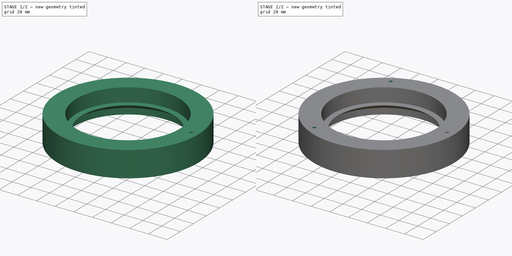
[diagram: build sequence overview — one tinted view per stage of 2, left to right]
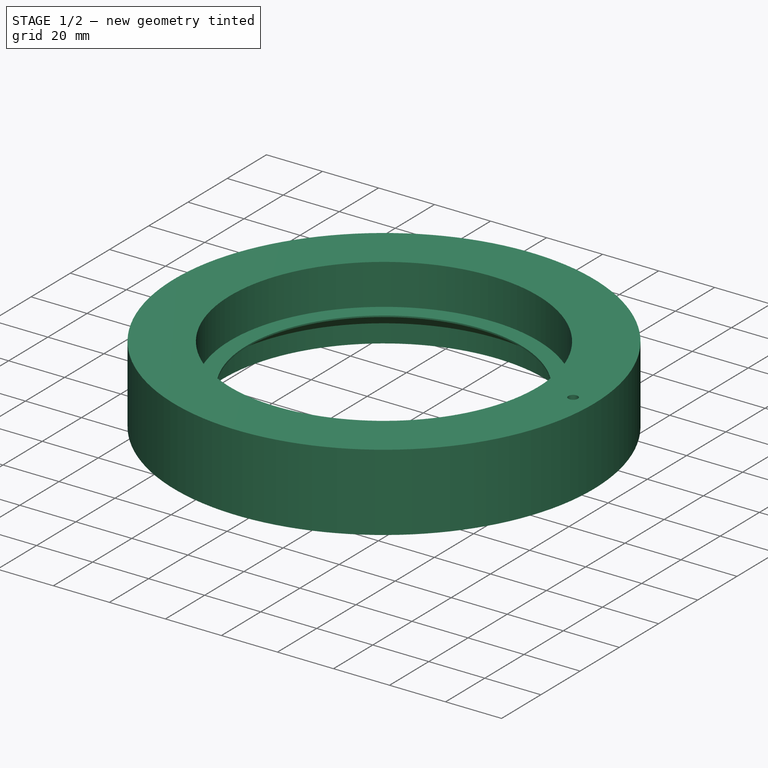
[diagram: stage 1 of 2 — iso view after this stage's code; geometry added in this stage tinted green]
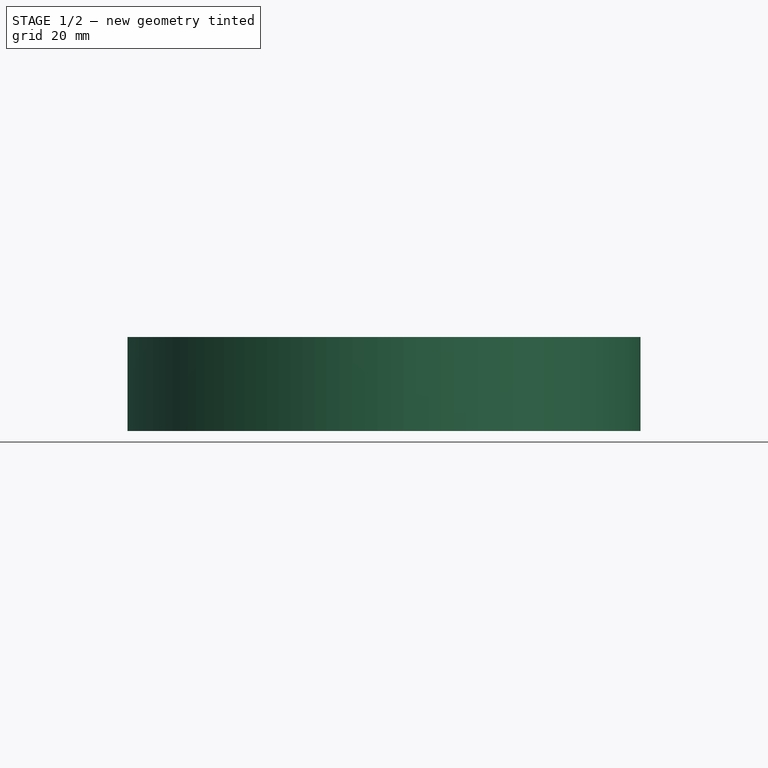
[diagram: stage 1 of 2 — front view after this stage's code; geometry added in this stage tinted green]
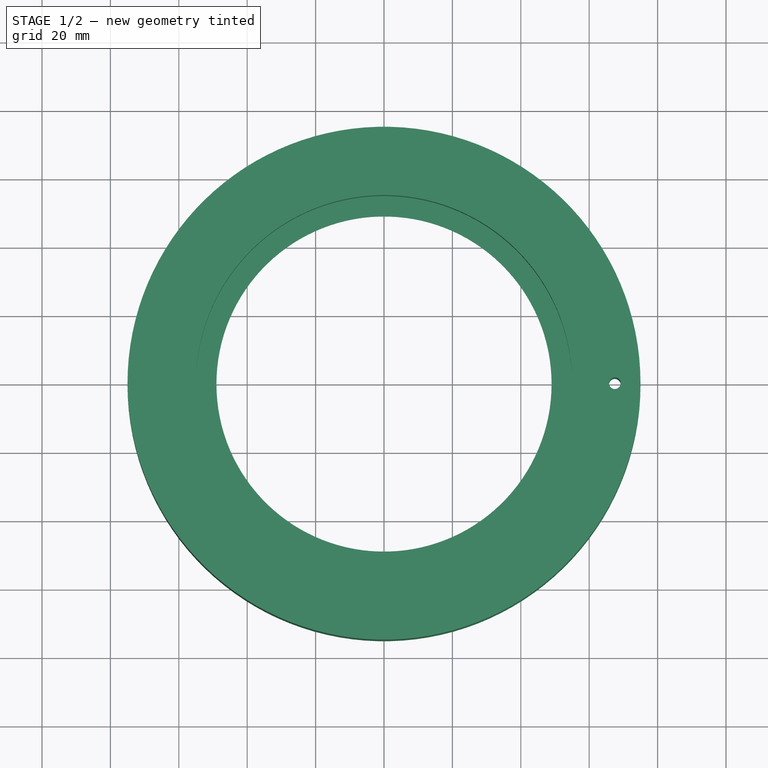
[diagram: stage 1 of 2 — top view after this stage's code; geometry added in this stage tinted green]
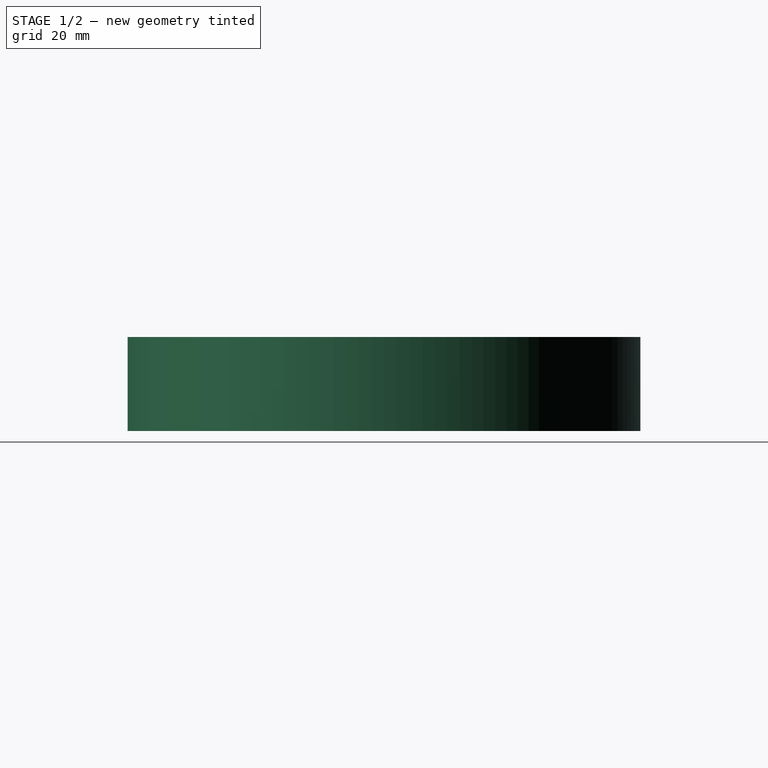
[diagram: stage 1 of 2 — right view after this stage's code; geometry added in this stage tinted green]
FCSTD DOCUMENT  (FreeCAD 0.19R24276 (Git))
Label: BaseTop
License: All rights reserved
LicenseURL: http://en.wikipedia.org/wiki/All_rights_reserved
objects: Sketcher::SketchObject×2, PartDesign::CoordinateSystem×2, PartDesign::Revolution×1, Spreadsheet::Sheet×1, PartDesign::Pocket×1, PartDesign::PolarPattern×1, PartDesign::Body×1
note: 10 computed .brp shape members not serialized (recipe doc carries the construction recipe); baked Part::Feature solids carry a one-line shape summary decoded from their .brp

FEATURE [Sketcher::SketchObject] Sketch
  FullyConstrained = true
  MapMode = 5
  Placement = pos=(0,0,0) rot=(1,0,0;1.5708rad)
  Support = -> [XZ_Plane]
  sketch-geometry (8):
    g0: LineSegment StartX=55 StartY=13 StartZ=0 EndX=55 EndY=27.5 EndZ=0
    g1: LineSegment StartX=55 StartY=27.5 StartZ=0 EndX=75 EndY=27.5 EndZ=0
    g2: LineSegment StartX=75 StartY=27.5 StartZ=0 EndX=75 EndY=0 EndZ=0
    g3: LineSegment StartX=75 StartY=0 StartZ=0 EndX=57.5689 EndY=0 EndZ=0
    g4: LineSegment StartX=57.5689 StartY=0 StartZ=0 EndX=57.5689 EndY=6.5 EndZ=0
    g5: LineSegment StartX=57.5689 StartY=6.5 StartZ=0 EndX=49 EndY=12.5 EndZ=0
    g6: LineSegment StartX=49 StartY=13 StartZ=0 EndX=55 EndY=13 EndZ=0
    g7: LineSegment StartX=49 StartY=13 StartZ=0 EndX=49 EndY=12.5 EndZ=0
  constraints (24):
    c: Vertical(g0)
    c: Coincident(g0,g1)
    c: Horizontal(g1)
    c: Coincident(g1,g2)
    c: PointOnObject(g2,g-1)
    c: Vertical(g2)
    c: Coincident(g2,g3)
    c: Horizontal(g3)
    c: Coincident(g3,g4)
    c: Vertical(g4)
    c: Coincident(g4,g5)
    c: Coincident(g6,g0)
    c: Horizontal(g6)
    c: DistanceX(g-1,g2) = 75
    c: DistanceX(g-1,g0) = 55
    c: DistanceX(g6,g6) = 6
    c: DistanceY(g2,g2) = 27.5
    c: Coincident(g7,g6)
    c: Coincident(g7,g5)
    c: Vertical(g7)
    c: DistanceY(g7,g7) = 0.5
    c: DistanceY(g5,g5) = 6
    c: DistanceY(g3,g6) = 13
    c: Angle(g3,g5) = 2.53073
FEATURE [PartDesign::Revolution] Revolution
  Angle = 360
  Axis = (0,2e-16,1)
  Base = (0,0,0)
  Placement = pos=(0,0,0) rot=(1,0,0;1.5708rad)
  Profile = -> Sketch
  ReferenceAxis = -> Sketch [V_Axis]
  Refine = true
  Reversed = true
FEATURE [Spreadsheet::Sheet] Spreadsheet
  cells = A2=M3BoltBodyRadius; B2(M3BoltBodyRadius)=1.7; A3=M3BoltHeadRadius; B3(M3BoltHeadRadius)=2.95; A4=M3NutCircumradius; B4(M3NutCircumradius)=3.35; A5=M3NutThickness; B5(M3NutThickness)=2.7; A6=M4BoltBodyRadius; B6(M4BoltBodyRadius)=2.2; A7=M6BoltBodyRadius; B7(M6BoltBodyRadius)=3; A8=M6WasherOuterRadius; B8(M6WasherOuterRadius)=7
FEATURE [Sketcher::SketchObject] Sketch001
  FullyConstrained = true
  MapMode = 5
  Placement = pos=(0,1.82e-14,27.5) rot=(0,0,1;3.14159rad)
  Support = -> [Revolution]
  expr: Constraints[1] = Spreadsheet.M3BoltBodyRadius
  sketch-geometry (1):
    g0: Circle CenterX=-67.5 CenterY=0 CenterZ=0 NormalX=0 NormalY=0 NormalZ=1 AngleXU=0 Radius=1.7
  constraints (3):
    c: PointOnObject(g0,g-1)
    c: Radius(g0) = 1.7
    c: DistanceX(g0,g-1) = 67.5
FEATURE [PartDesign::Pocket] Pocket
  BaseFeature = -> Revolution
  Length = 5
  Length2 = 100
  Placement = pos=(0,0,0) rot=(1,0,0;1.5708rad)
  Profile = -> Sketch001
  Refine = true
  Type = 1
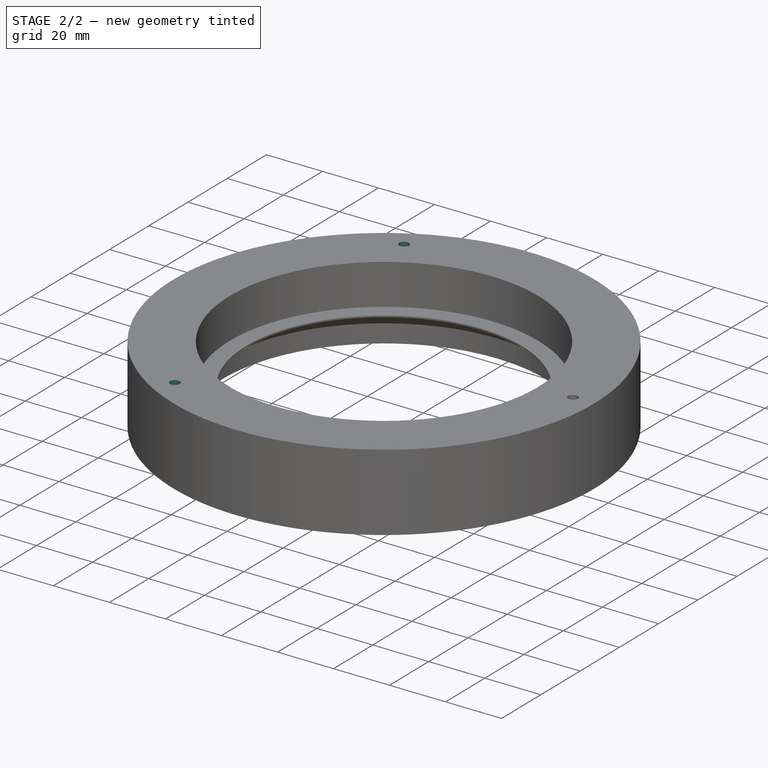
[diagram: stage 2 of 2 — iso view after this stage's code; geometry added in this stage tinted green]
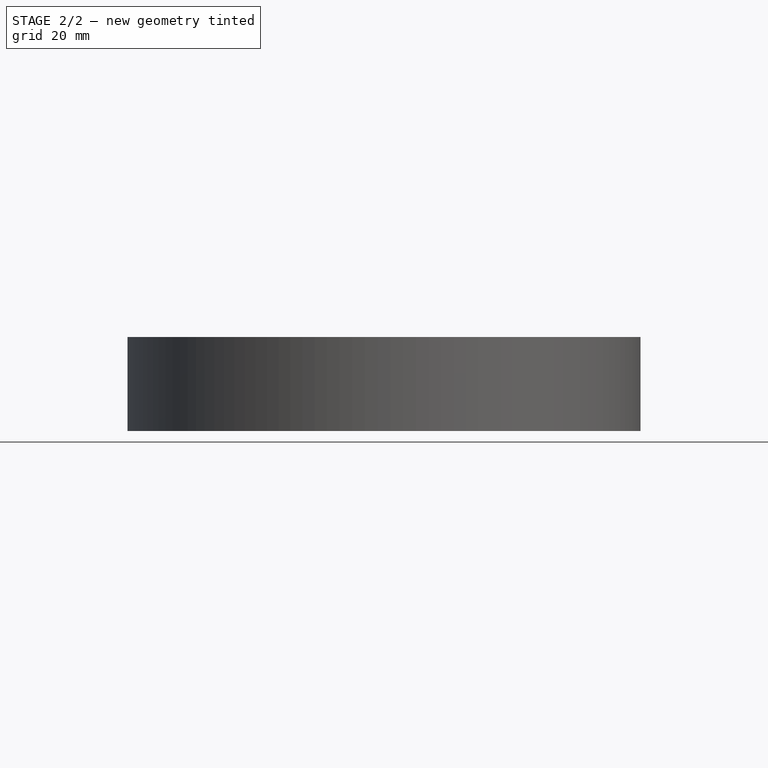
[diagram: stage 2 of 2 — front view after this stage's code; geometry added in this stage tinted green]
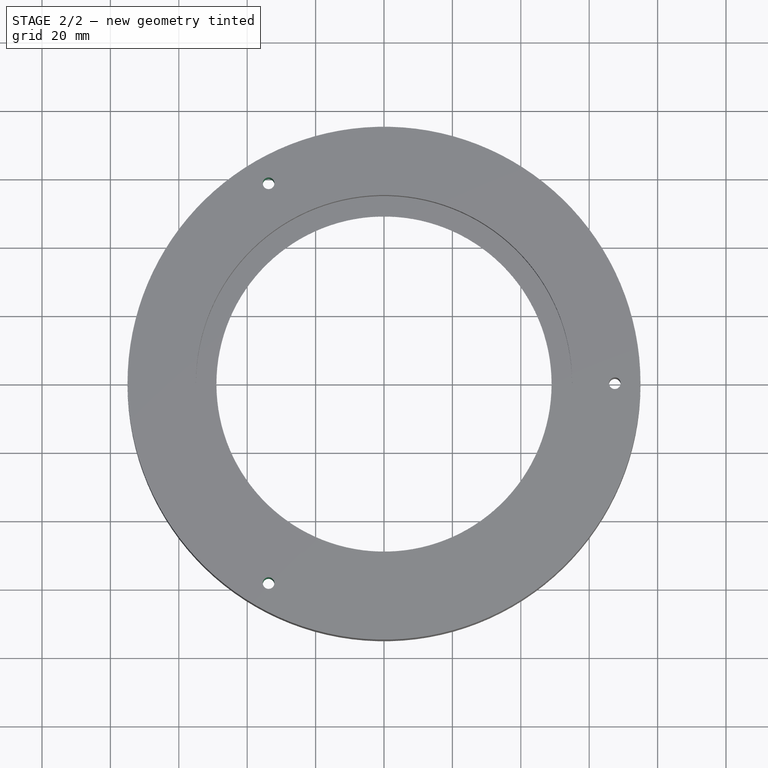
[diagram: stage 2 of 2 — top view after this stage's code; geometry added in this stage tinted green]
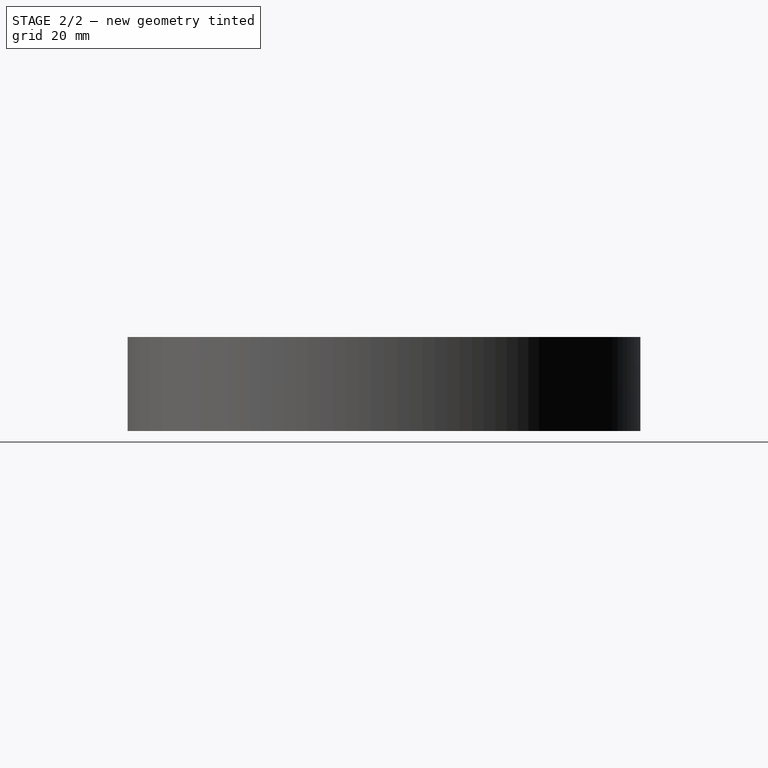
[diagram: stage 2 of 2 — right view after this stage's code; geometry added in this stage tinted green]
FEATURE [PartDesign::PolarPattern] PolarPattern
  Angle = 360
  Axis = -> Sketch001 [N_Axis]
  BaseFeature = -> Pocket
  Occurrences = 3
  Originals = -> [Pocket]
  Placement = pos=(0,0,0) rot=(1,0,0;1.5708rad)
  Refine = true
FEATURE [PartDesign::CoordinateSystem] LCS_Bot
  AttacherType = Attacher::AttachEngine3D
  MapMode = 11
  Placement = pos=(0,0,0) rot=(0.707107,-0.707107,0;3.14159rad)
  Support = -> [PolarPattern]
FEATURE [PartDesign::CoordinateSystem] LCS_Top
  AttacherType = Attacher::AttachEngine3D
  MapMode = 11
  Placement = pos=(0,1.83e-14,27.5) rot=(0.707107,-0.707107,0;3.14159rad)
  Support = -> [PolarPattern]
FEATURE [PartDesign::Body] Body  label="BaseTop"
  Group = -> [Sketch,Revolution,Sketch001,Pocket,PolarPattern,LCS_Bot,LCS_Top]
  Origin = -> Origin
  Tip = -> PolarPattern
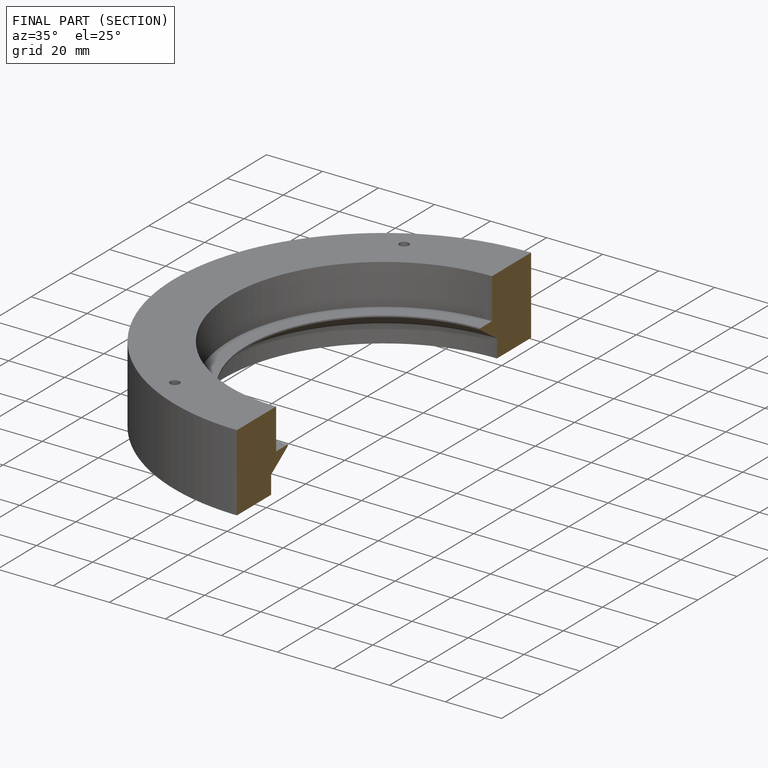
[diagram: finished part — half-section view (interior)]
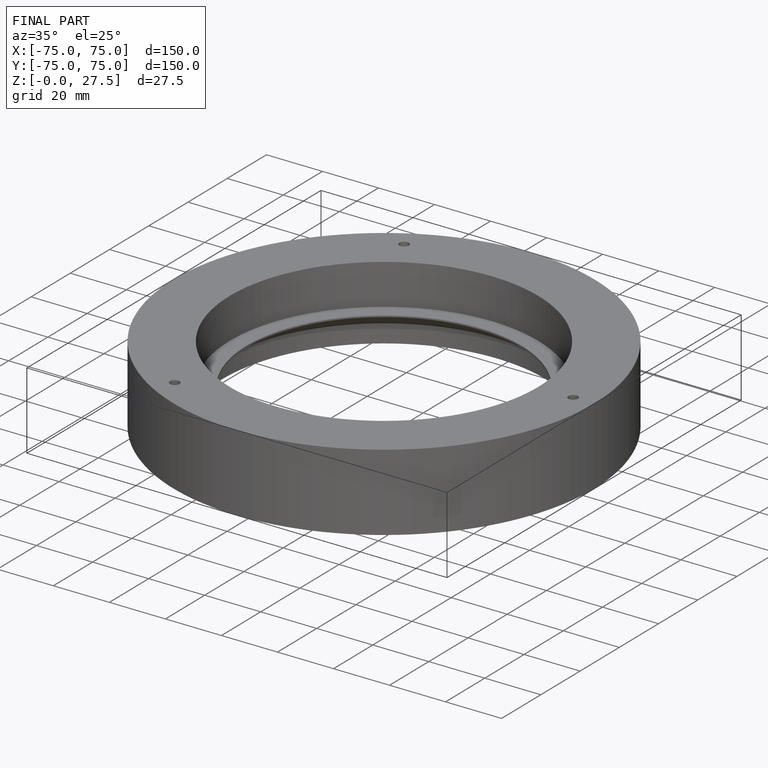
[diagram: finished part — iso view with bounding-box wireframe]
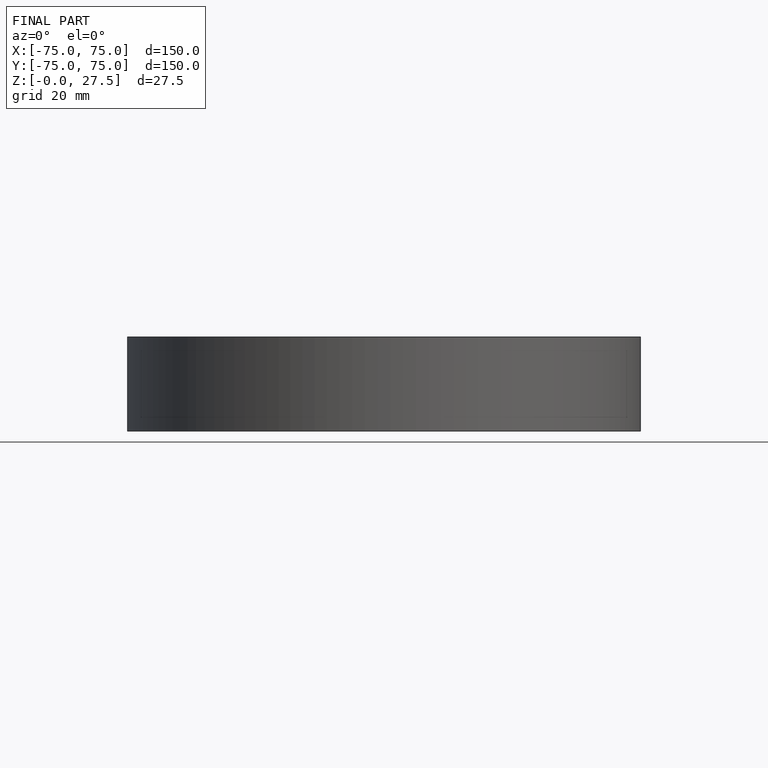
[diagram: finished part — front view with bounding-box wireframe]
